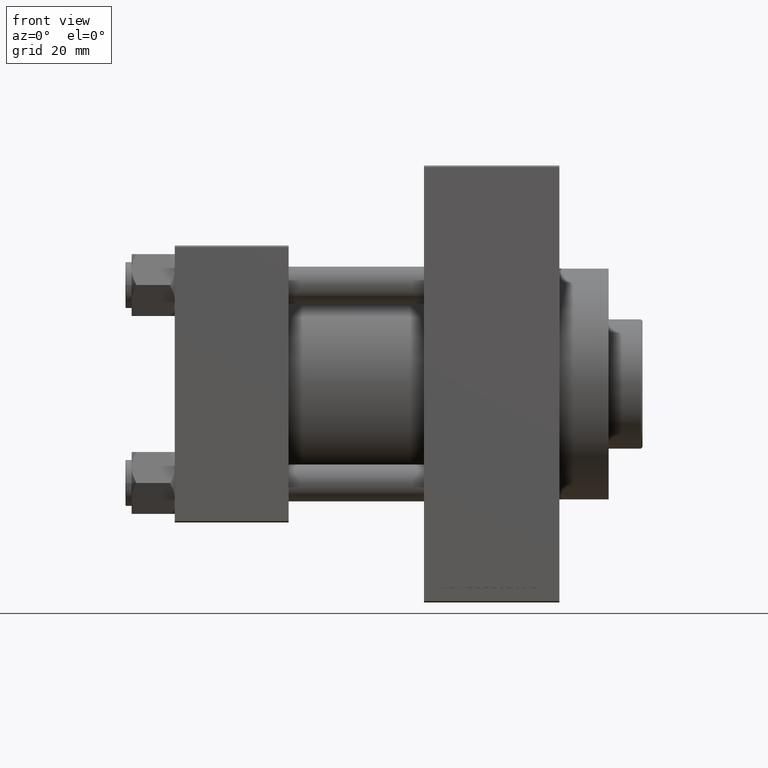
[diagram: clean part render]
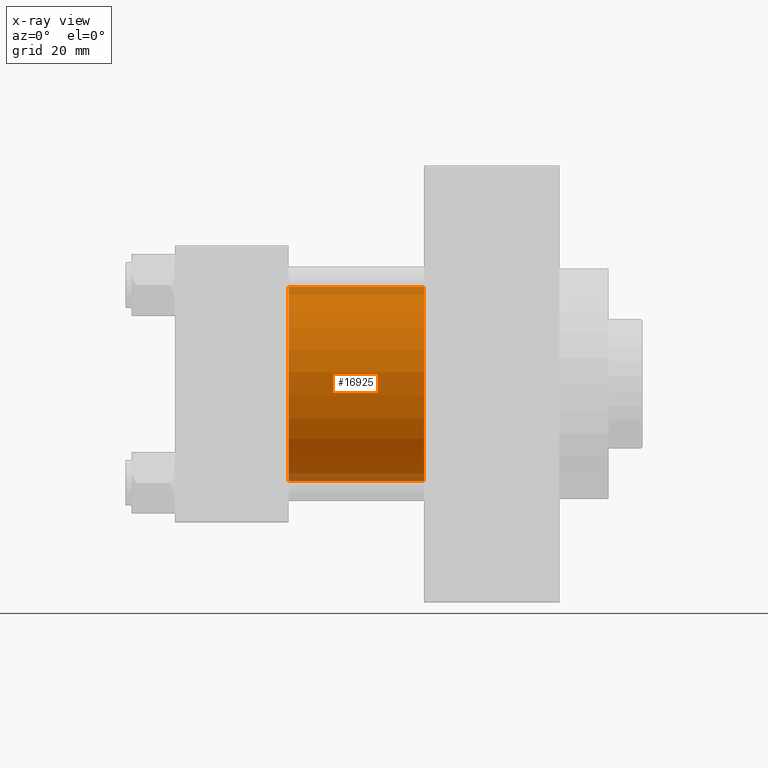
[diagram: x-ray — body ghosted, one internal face saturated and labeled with its STEP entity id]
A machine part, front view, then the same camera in x-ray: the body is ghosted and one INTERNAL B-rep face — a face not visible from any outside direction — is saturated and labeled: STEP entity #16925.
In plain terms, the highlighted cylindrical surface (partial cylindrical patch) has radius 31.5 mm, axis along (-1, -0, -0).
Its self-contained STEP definition (entity closure, byte-faithful):
#18 = CIRCLE ( 'NONE', #32786, 31.50000000000000000 ) ;
#383 = DIRECTION ( 'NONE',  ( 0.000000000000000000, 0.000000000000000000, -1.000000000000000000 ) ) ;
#1008 = CARTESIAN_POINT ( 'NONE',  ( 80.99999999999998579, -2.602085213965210642E-15, 31.50000000000000000 ) ) ;
#2823 = VERTEX_POINT ( 'NONE', #11129 ) ;
#3209 = EDGE_CURVE ( 'NONE', #29291, #2823, #44207, .T. ) ;
#4432 = DIRECTION ( 'NONE',  ( 1.000000000000000000, 0.000000000000000000, 0.000000000000000000 ) ) ;
#4440 = DIRECTION ( 'NONE',  ( 1.000000000000000000, 0.000000000000000000, 0.000000000000000000 ) ) ;
#5028 = CARTESIAN_POINT ( 'NONE',  ( 80.99999999999998579, 1.255552203348951850E-15, -31.50000000000000000 ) ) ;
#5382 = DIRECTION ( 'NONE',  ( 0.000000000000000000, 0.000000000000000000, -1.000000000000000000 ) ) ;
#5495 = LINE ( 'NONE', #5028, #43905 ) ;
#5931 = CARTESIAN_POINT ( 'NONE',  ( 37.00000000000000000, 1.255552203348951850E-15, -31.50000000000000000 ) ) ;
#7001 = ORIENTED_EDGE ( 'NONE', *, *, #19671, .F. ) ;
#7499 = AXIS2_PLACEMENT_3D ( 'NONE', #16319, #30869, #42084 ) ;
#11129 = CARTESIAN_POINT ( 'NONE',  ( 37.00000000000000000, -2.602085213965210642E-15, 31.50000000000000000 ) ) ;
#14532 = EDGE_CURVE ( 'NONE', #29291, #30221, #28034, .T. ) ;
#15573 = DIRECTION ( 'NONE',  ( -1.000000000000000000, -0.000000000000000000, -0.000000000000000000 ) ) ;
#16319 = CARTESIAN_POINT ( 'NONE',  ( 80.99999999999998579, -2.602085213965210642E-15, 0.000000000000000000 ) ) ;
#16925 = ADVANCED_FACE ( 'NONE', ( #19669 ), #27533, .F. ) ;
#18132 = CARTESIAN_POINT ( 'NONE',  ( 80.99999999999998579, 1.255552203348951850E-15, -31.50000000000000000 ) ) ;
#18753 = CARTESIAN_POINT ( 'NONE',  ( 80.99999999999998579, -2.602085213965210642E-15, 0.000000000000000000 ) ) ;
#19588 = DIRECTION ( 'NONE',  ( -1.000000000000000000, -0.000000000000000000, -0.000000000000000000 ) ) ;
#19669 = FACE_OUTER_BOUND ( 'NONE', #22382, .T. ) ;
#19671 = EDGE_CURVE ( 'NONE', #2823, #27129, #18, .T. ) ;
#22382 = EDGE_LOOP ( 'NONE', ( #29905, #40700, #7001, #32707 ) ) ;
#27129 = VERTEX_POINT ( 'NONE', #5931 ) ;
#27533 = CYLINDRICAL_SURFACE ( 'NONE', #7499, 31.50000000000000000 ) ;
#28034 = CIRCLE ( 'NONE', #31841, 31.50000000000000000 ) ;
#29291 = VERTEX_POINT ( 'NONE', #41067 ) ;
#29730 = CARTESIAN_POINT ( 'NONE',  ( 37.00000000000000000, -2.602085213965210642E-15, 0.000000000000000000 ) ) ;
#29905 = ORIENTED_EDGE ( 'NONE', *, *, #14532, .T. ) ;
#30221 = VERTEX_POINT ( 'NONE', #18132 ) ;
#30869 = DIRECTION ( 'NONE',  ( -1.000000000000000000, -0.000000000000000000, -0.000000000000000000 ) ) ;
#31841 = AXIS2_PLACEMENT_3D ( 'NONE', #18753, #4440, #383 ) ;
#32707 = ORIENTED_EDGE ( 'NONE', *, *, #3209, .F. ) ;
#32786 = AXIS2_PLACEMENT_3D ( 'NONE', #29730, #4432, #5382 ) ;
#40700 = ORIENTED_EDGE ( 'NONE', *, *, #42735, .T. ) ;
#41067 = CARTESIAN_POINT ( 'NONE',  ( 80.99999999999998579, -2.602085213965210642E-15, 31.50000000000000000 ) ) ;
#42084 = DIRECTION ( 'NONE',  ( 0.000000000000000000, 0.000000000000000000, 1.000000000000000000 ) ) ;
#42735 = EDGE_CURVE ( 'NONE', #30221, #27129, #5495, .T. ) ;
#43905 = VECTOR ( 'NONE', #19588, 1000.000000000000000 ) ;
#44207 = LINE ( 'NONE', #1008, #44560 ) ;
#44560 = VECTOR ( 'NONE', #15573, 1000.000000000000000 ) ;